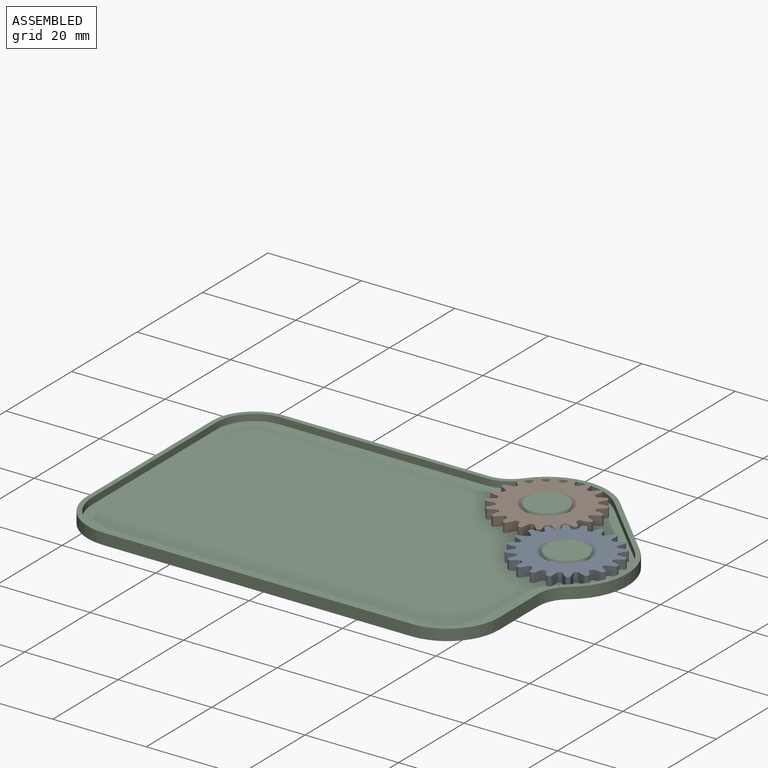
[diagram: assembled view]
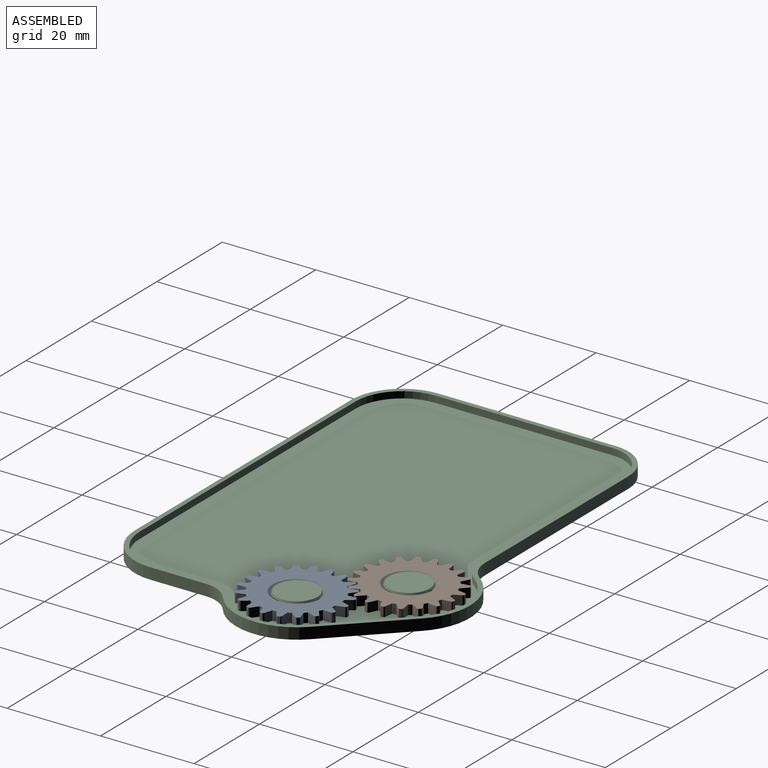
[diagram: assembled view, second angle]
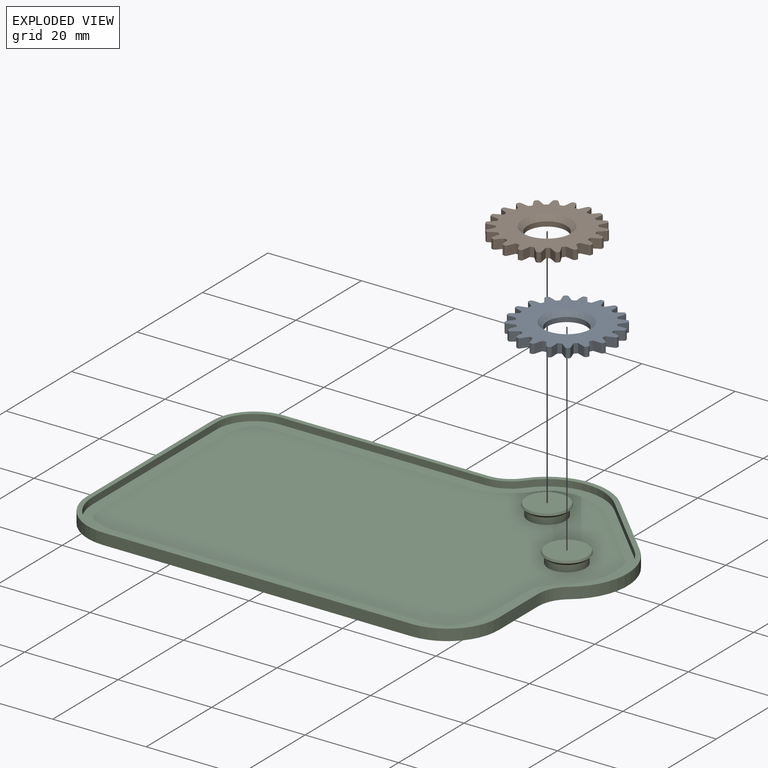
[diagram: exploded view]
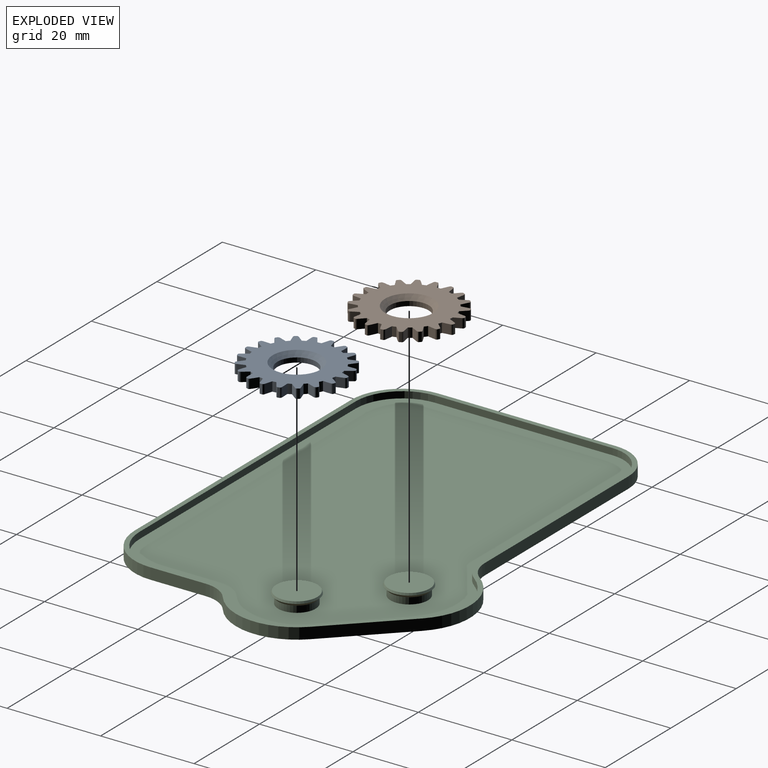
[diagram: exploded view, second angle]
ASSEMBLY  parts=3 mates=2
PART A: 124 faces, bbox 21.6x21.6x2 mm
  f0: plane 2x1.53mm, normal (0.9,0.43,0), area 3.4mm2, adj f59,f61,f62,f64
  f1: plane 2x1.69mm, normal (-0.99,0.13,0), area 3.4mm2, adj f2,f61,f62,f63
  f2: cylinder r=9mm len=2mm, axis (0,0,-1), area 1.6mm2, adj f1,f3,f61,f62
  f3: plane 2x1.23mm, normal (0.72,0.69,0), area 3.4mm2, adj f2,f61,f62,f102
  f4: plane 2x1.67mm, normal (-0.98,-0.18,0), area 3.4mm2, adj f5,f61,f62,f101
  f5: cylinder r=9mm len=2mm, axis (0,0,-1), area 1.6mm2, adj f4,f6,f61,f62
  f6: plane 2x1.5mm, normal (0.47,0.88,0), area 3.4mm2, adj f5,f61,f62,f66
  f7: plane 2x1.5mm, normal (-0.88,-0.47,0), area 3.4mm2, adj f8,f61,f62,f65
  f8: cylinder r=9mm len=2mm, axis (0,0,-1), area 1.6mm2, adj f7,f9,f61,f62
  f9: plane 2x1.67mm, normal (0.18,0.98,0), area 3.4mm2, adj f8,f61,f62,f68
  f10: plane 2x1.23mm, normal (-0.69,-0.72,0), area 3.4mm2, adj f11,f61,f62,f67
  f11: cylinder r=9mm len=2mm, axis (0,0,-1), area 1.6mm2, adj f10,f12,f61,f62
  f12: plane 2x1.69mm, normal (-0.13,0.99,0), area 3.4mm2, adj f11,f61,f62,f70
  f13: plane 2x1.53mm, normal (-0.43,-0.9,0), area 3.4mm2, adj f14,f61,f62,f69
  f14: cylinder r=9mm len=2mm, axis (0,0,-1), area 1.6mm2, adj f13,f15,f61,f62
  f15: plane 2x1.53mm, normal (-0.43,0.9,0), area 3.4mm2, adj f14,f61,f62,f72
  f16: plane 2x1.69mm, normal (-0.13,-0.99,0), area 3.4mm2, adj f17,f61,f62,f71
  f17: cylinder r=9mm len=2mm, axis (0,0,-1), area 1.6mm2, adj f16,f18,f61,f62
  f18: plane 2x1.23mm, normal (-0.69,0.72,0), area 3.4mm2, adj f17,f61,f62,f74
  f19: plane 2x1.67mm, normal (0.18,-0.98,0), area 3.4mm2, adj f20,f61,f62,f73
  f20: cylinder r=9mm len=2mm, axis (0,0,-1), area 1.6mm2, adj f19,f21,f61,f62
  f21: plane 2x1.5mm, normal (-0.88,0.47,0), area 3.4mm2, adj f20,f61,f62,f76
  f22: plane 2x1.5mm, normal (0.47,-0.88,0), area 3.4mm2, adj f23,f61,f62,f75
  f23: cylinder r=9mm len=2mm, axis (0,0,-1), area 1.6mm2, adj f22,f24,f61,f62
  f24: plane 2x1.67mm, normal (-0.98,0.18,0), area 3.4mm2, adj f23,f61,f62,f78
  f25: plane 2x1.23mm, normal (0.72,-0.69,0), area 3.4mm2, adj f26,f61,f62,f77
  f26: cylinder r=9mm len=2mm, axis (0,0,-1), area 1.6mm2, adj f25,f27,f61,f62
  f27: plane 2x1.69mm, normal (-0.99,-0.13,0), area 3.4mm2, adj f26,f61,f62,f80
  f28: plane 2x1.53mm, normal (0.9,-0.43,0), area 3.4mm2, adj f29,f61,f62,f79
  f29: cylinder r=9mm len=2mm, axis (0,0,-1), area 1.6mm2, adj f28,f30,f61,f62
  f30: plane 2x1.53mm, normal (-0.9,-0.43,0), area 3.4mm2, adj f29,f61,f62,f82
  f31: plane 2x1.69mm, normal (0.99,-0.13,0), area 3.4mm2, adj f32,f61,f62,f81
  f32: cylinder r=9mm len=2mm, axis (0,0,-1), area 1.6mm2, adj f31,f33,f61,f62
  f33: plane 2x1.23mm, normal (-0.72,-0.69,0), area 3.4mm2, adj f32,f61,f62,f84
  f34: plane 2x1.67mm, normal (0.98,0.18,0), area 3.4mm2, adj f35,f61,f62,f83
  f35: cylinder r=9mm len=2mm, axis (0,0,-1), area 1.6mm2, adj f34,f36,f61,f62
  f36: plane 2x1.5mm, normal (-0.47,-0.88,0), area 3.4mm2, adj f35,f61,f62,f86
  f37: plane 2x1.5mm, normal (0.88,0.47,0), area 3.4mm2, adj f38,f61,f62,f85
  f38: cylinder r=9mm len=2mm, axis (0,0,-1), area 1.6mm2, adj f37,f39,f61,f62
  f39: plane 2x1.67mm, normal (-0.18,-0.98,0), area 3.4mm2, adj f38,f61,f62,f88
  f40: plane 2x1.23mm, normal (0.69,0.72,0), area 3.4mm2, adj f41,f61,f62,f87
  f41: cylinder r=9mm len=2mm, axis (0,0,-1), area 1.6mm2, adj f40,f42,f61,f62
  f42: plane 2x1.69mm, normal (0.13,-0.99,0), area 3.4mm2, adj f41,f61,f62,f90
  f43: plane 2x1.53mm, normal (0.43,0.9,0), area 3.4mm2, adj f44,f61,f62,f89
  f44: cylinder r=9mm len=2mm, axis (0,0,-1), area 1.6mm2, adj f43,f45,f61,f62
  f45: plane 2x1.53mm, normal (0.43,-0.9,0), area 3.4mm2, adj f44,f61,f62,f92
  f46: plane 2x1.69mm, normal (0.13,0.99,0), area 3.4mm2, adj f47,f61,f62,f91
  f47: cylinder r=9mm len=2mm, axis (0,0,-1), area 1.6mm2, adj f46,f48,f61,f62
  f48: plane 2x1.23mm, normal (0.69,-0.72,0), area 3.4mm2, adj f47,f61,f62,f94
  f49: plane 2x1.67mm, normal (-0.18,0.98,0), area 3.4mm2, adj f50,f61,f62,f93
  f50: cylinder r=9mm len=2mm, axis (0,0,-1), area 1.6mm2, adj f49,f51,f61,f62
  f51: plane 2x1.5mm, normal (0.88,-0.47,0), area 3.4mm2, adj f50,f61,f62,f96
  f52: plane 2x1.5mm, normal (-0.47,0.88,0), area 3.4mm2, adj f53,f61,f62,f95
  f53: cylinder r=9mm len=2mm, axis (0,0,-1), area 1.6mm2, adj f52,f54,f61,f62
  f54: plane 2x1.67mm, normal (0.98,-0.18,0), area 3.4mm2, adj f53,f61,f62,f98
  f55: plane 2x1.23mm, normal (-0.72,0.69,0), area 3.4mm2, adj f56,f61,f62,f97
  f56: cylinder r=9mm len=2mm, axis (0,0,-1), area 1.6mm2, adj f55,f57,f61,f62
  f57: plane 2x1.69mm, normal (0.99,0.13,0), area 3.4mm2, adj f56,f61,f62,f100
  f58: plane 2x1.53mm, normal (-0.9,0.43,0), area 3.4mm2, adj f59,f61,f62,f99
  f59: cylinder r=9mm len=2mm, axis (0,0,-1), area 1.6mm2, adj f0,f58,f61,f62
  f60: cylinder r=4.16mm len=8.32mm, axis (0,0,-1), area 26.1mm2, adj f62,f103
  f61: plane 21.61x21.61mm, normal (0,0,1), area 224.9mm2, adj f0,f1,f2,f3,f4,f5,f6,f7
  f62: plane 21.61x21.61mm, normal (0,0,-1), area 254.2mm2, adj f0,f1,f2,f3,f4,f5,f6,f7
  f63: cylinder r=0.6mm len=2mm, axis (0,0,-1), area 0.8mm2, adj f1,f61,f62,f123
  f64: cylinder r=0.6mm len=2mm, axis (0,0,-1), area 0.8mm2, adj f0,f61,f62,f123
  f65: cylinder r=0.6mm len=2mm, axis (0,0,-1), area 0.8mm2, adj f7,f61,f62,f122
  f66: cylinder r=0.6mm len=2mm, axis (0,0,-1), area 0.8mm2, adj f6,f61,f62,f122
  f67: cylinder r=0.6mm len=2mm, axis (0,0,-1), area 0.8mm2, adj f10,f61,f62,f121
  f68: cylinder r=0.6mm len=2mm, axis (0,0,-1), area 0.8mm2, adj f9,f61,f62,f121
  f69: cylinder r=0.6mm len=2mm, axis (0,0,-1), area 0.8mm2, adj f13,f61,f62,f120
  f70: cylinder r=0.6mm len=2mm, axis (0,0,-1), area 0.8mm2, adj f12,f61,f62,f120
  f71: cylinder r=0.6mm len=2mm, axis (0,0,-1), area 0.8mm2, adj f16,f61,f62,f119
  f72: cylinder r=0.6mm len=2mm, axis (0,0,-1), area 0.8mm2, adj f15,f61,f62,f119
  f73: cylinder r=0.6mm len=2mm, axis (0,0,-1), area 0.8mm2, adj f19,f61,f62,f118
  f74: cylinder r=0.6mm len=2mm, axis (0,0,-1), area 0.8mm2, adj f18,f61,f62,f118
  f75: cylinder r=0.6mm len=2mm, axis (0,0,-1), area 0.8mm2, adj f22,f61,f62,f117
  f76: cylinder r=0.6mm len=2mm, axis (0,0,-1), area 0.8mm2, adj f21,f61,f62,f117
  f77: cylinder r=0.6mm len=2mm, axis (0,0,-1), area 0.8mm2, adj f25,f61,f62,f116
  f78: cylinder r=0.6mm len=2mm, axis (0,0,-1), area 0.8mm2, adj f24,f61,f62,f116
  f79: cylinder r=0.6mm len=2mm, axis (0,0,-1), area 0.8mm2, adj f28,f61,f62,f115
  f80: cylinder r=0.6mm len=2mm, axis (0,0,-1), area 0.8mm2, adj f27,f61,f62,f115
  f81: cylinder r=0.6mm len=2mm, axis (0,0,-1), area 0.8mm2, adj f31,f61,f62,f114
  f82: cylinder r=0.6mm len=2mm, axis (0,0,-1), area 0.8mm2, adj f30,f61,f62,f114
  f83: cylinder r=0.6mm len=2mm, axis (0,0,-1), area 0.8mm2, adj f34,f61,f62,f113
  f84: cylinder r=0.6mm len=2mm, axis (0,0,-1), area 0.8mm2, adj f33,f61,f62,f113
  f85: cylinder r=0.6mm len=2mm, axis (0,0,-1), area 0.8mm2, adj f37,f61,f62,f112
  f86: cylinder r=0.6mm len=2mm, axis (0,0,-1), area 0.8mm2, adj f36,f61,f62,f112
  f87: cylinder r=0.6mm len=2mm, axis (0,0,-1), area 0.8mm2, adj f40,f61,f62,f111
  f88: cylinder r=0.6mm len=2mm, axis (0,0,-1), area 0.8mm2, adj f39,f61,f62,f111
  f89: cylinder r=0.6mm len=2mm, axis (0,0,-1), area 0.8mm2, adj f43,f61,f62,f110
  f90: cylinder r=0.6mm len=2mm, axis (0,0,-1), area 0.8mm2, adj f42,f61,f62,f110
  f91: cylinder r=0.6mm len=2mm, axis (0,0,-1), area 0.8mm2, adj f46,f61,f62,f109
  f92: cylinder r=0.6mm len=2mm, axis (0,0,-1), area 0.8mm2, adj f45,f61,f62,f109
  f93: cylinder r=0.6mm len=2mm, axis (0,0,-1), area 0.8mm2, adj f49,f61,f62,f108
  f94: cylinder r=0.6mm len=2mm, axis (0,0,-1), area 0.8mm2, adj f48,f61,f62,f108
  f95: cylinder r=0.6mm len=2mm, axis (0,0,-1), area 0.8mm2, adj f52,f61,f62,f107
  f96: cylinder r=0.6mm len=2mm, axis (0,0,-1), area 0.8mm2, adj f51,f61,f62,f107
  f97: cylinder r=0.6mm len=2mm, axis (0,0,-1), area 0.8mm2, adj f55,f61,f62,f106
  f98: cylinder r=0.6mm len=2mm, axis (0,0,-1), area 0.8mm2, adj f54,f61,f62,f106
  f99: cylinder r=0.6mm len=2mm, axis (0,0,-1), area 0.8mm2, adj f58,f61,f62,f105
  f100: cylinder r=0.6mm len=2mm, axis (0,0,-1), area 0.8mm2, adj f57,f61,f62,f105
  f101: cylinder r=0.6mm len=2mm, axis (0,0,-1), area 0.8mm2, adj f4,f61,f62,f104
  f102: cylinder r=0.6mm len=2mm, axis (0,0,-1), area 0.8mm2, adj f3,f61,f62,f104
  f103: cone r=4.16mm half-angle=45deg, axis (0,0,1), area 41.4mm2, adj f60,f61
  f104: cylinder r=10.9mm len=2mm, axis (0,0,-1), area 1.1mm2, adj f61,f62,f101,f102
  f105: cylinder r=10.9mm len=2mm, axis (0,0,-1), area 1.1mm2, adj f61,f62,f99,f100
  f106: cylinder r=10.9mm len=2mm, axis (0,0,-1), area 1.1mm2, adj f61,f62,f97,f98
  f107: cylinder r=10.9mm len=2mm, axis (0,0,-1), area 1.1mm2, adj f61,f62,f95,f96
  f108: cylinder r=10.9mm len=2mm, axis (0,0,-1), area 1.1mm2, adj f61,f62,f93,f94
  f109: cylinder r=10.9mm len=2mm, axis (0,0,-1), area 1.1mm2, adj f61,f62,f91,f92
  f110: cylinder r=10.9mm len=2mm, axis (0,0,-1), area 1.1mm2, adj f61,f62,f89,f90
  f111: cylinder r=10.9mm len=2mm, axis (0,0,-1), area 1.1mm2, adj f61,f62,f87,f88
  f112: cylinder r=10.9mm len=2mm, axis (0,0,-1), area 1.1mm2, adj f61,f62,f85,f86
  f113: cylinder r=10.9mm len=2mm, axis (0,0,-1), area 1.1mm2, adj f61,f62,f83,f84
  f114: cylinder r=10.9mm len=2mm, axis (0,0,-1), area 1.1mm2, adj f61,f62,f81,f82
  f115: cylinder r=10.9mm len=2mm, axis (0,0,-1), area 1.1mm2, adj f61,f62,f79,f80
  f116: cylinder r=10.9mm len=2mm, axis (0,0,-1), area 1.1mm2, adj f61,f62,f77,f78
  f117: cylinder r=10.9mm len=2mm, axis (0,0,-1), area 1.1mm2, adj f61,f62,f75,f76
  f118: cylinder r=10.9mm len=2mm, axis (0,0,-1), area 1.1mm2, adj f61,f62,f73,f74
  f119: cylinder r=10.9mm len=2mm, axis (0,0,-1), area 1.1mm2, adj f61,f62,f71,f72
  f120: cylinder r=10.9mm len=2mm, axis (0,0,-1), area 1.1mm2, adj f61,f62,f69,f70
  f121: cylinder r=10.9mm len=2mm, axis (0,0,-1), area 1.1mm2, adj f61,f62,f67,f68
  f122: cylinder r=10.9mm len=2mm, axis (0,0,-1), area 1.1mm2, adj f61,f62,f65,f66
  f123: cylinder r=10.9mm len=2mm, axis (0,0,-1), area 1.1mm2, adj f61,f62,f63,f64
PART B: same geometry as A
PART C: 35 faces, bbox 96x66x3.4 mm
  f0: cylinder r=4mm len=8mm, axis (0,0,1), area 35.2mm2, adj f1,f33
  f1: cone r=5mm half-angle=45deg, axis (0,0,1), area 21.9mm2, adj f0,f3
  f2: plane 8.8x8.8mm, normal (0,0,1), area 60.8mm2, adj f3
  f3: cone r=4.4mm half-angle=22.5deg, axis (0,0,-1), area 12.9mm2, adj f1,f2
  f4: cylinder r=4mm len=8mm, axis (0,0,1), area 35.2mm2, adj f5,f33
  f5: cone r=5mm half-angle=45deg, axis (0,0,1), area 21.9mm2, adj f4,f7
  f6: plane 8.8x8.8mm, normal (0,0,1), area 60.8mm2, adj f7
  f7: cone r=4.4mm half-angle=22.5deg, axis (0,0,-1), area 12.9mm2, adj f5,f6
  f8: cylinder r=9mm len=9mm, axis (0,0,-1), area 33.9mm2, adj f9,f31,f32,f34
  f9: plane 38x2.4mm, normal (-1,0,0), area 91.2mm2, adj f8,f10,f32,f34
  f10: cylinder r=11mm len=11mm, axis (0,0,-1), area 41.5mm2, adj f9,f11,f32,f34
  f11: plane 66x2.4mm, normal (0,-1,0), area 158.4mm2, adj f10,f12,f32,f34
  f12: cylinder r=11mm len=11mm, axis (0,0,-1), area 41.5mm2, adj f11,f13,f32,f34
  f13: plane 11.86x2.4mm, normal (1,0,0), area 28.5mm2, adj f12,f14,f32,f34
  f14: cylinder r=7mm len=5.6mm, axis (0,0,-1), area 15.6mm2, adj f13,f15,f32,f34
  f15: cylinder r=13mm len=19.59mm, axis (0,0,-1), area 53.4mm2, adj f14,f16,f32,f34
  f16: plane 14.14x14.14mm, normal (0.71,0.71,0), area 48mm2, adj f15,f17,f32,f34
  f17: cylinder r=13mm len=19.59mm, axis (0,0,-1), area 53.4mm2, adj f16,f18,f32,f34
  f18: cylinder r=7mm len=5.6mm, axis (0,0,-1), area 15.6mm2, adj f17,f31,f32,f34
  f19: plane 38x1.4mm, normal (1,0,0), area 53.2mm2, adj f20,f30,f32,f33
  f20: cylinder r=8mm len=8mm, axis (0,0,-1), area 17.6mm2, adj f19,f21,f32,f33
  f21: plane 43.86x1.4mm, normal (0,-1,0), area 61.4mm2, adj f20,f22,f32,f33
  f22: cylinder r=8mm len=6.4mm, axis (0,0,-1), area 10.4mm2, adj f21,f23,f32,f33
  f23: cylinder r=12mm len=18.09mm, axis (0,0,-1), area 28.8mm2, adj f22,f24,f32,f33
  f24: plane 14.14x14.14mm, normal (-0.71,-0.71,0), area 28mm2, adj f23,f25,f32,f33
  f25: cylinder r=12mm len=18.09mm, axis (0,0,-1), area 28.8mm2, adj f24,f26,f32,f33
  f26: cylinder r=8mm len=6.4mm, axis (0,0,-1), area 10.4mm2, adj f25,f27,f32,f33
  f27: plane 11.86x1.4mm, normal (-1,0,0), area 16.6mm2, adj f26,f28,f32,f33
  f28: cylinder r=10mm len=10mm, axis (0,0,-1), area 22mm2, adj f27,f29,f32,f33
  f29: plane 66x1.4mm, normal (0,1,0), area 92.4mm2, adj f28,f30,f32,f33
  f30: cylinder r=10mm len=10mm, axis (0,0,-1), area 22mm2, adj f19,f29,f32,f33
  f31: plane 43.86x2.4mm, normal (0,1,0), area 105.3mm2, adj f8,f18,f32,f34
  f32: plane 96x66mm, normal (0,0,1), area 282.8mm2, adj f8,f9,f10,f11,f12,f13,f14,f15
  f33: plane 94x64mm, normal (0,0,1), area 4921mm2, adj f0,f4,f19,f20,f21,f22,f23,f24
  f34: plane 96x66mm, normal (0,0,-1), area 5304.3mm2, adj f8,f9,f10,f11,f12,f13,f14,f15
PLACE A rot(axis=(0,0,1),9deg) t=(0,0,0.3)mm
PLACE B t=(-14.14,14.14,0.3)mm
PLACE C at identity
MATE revolute B.f56 <-> C.f4  axis (0,0,1) through (-14.14,14.14,2.3)mm
MATE revolute A.f60 <-> C.f0  axis (0,0,1) through (0,0,2.3)mm
